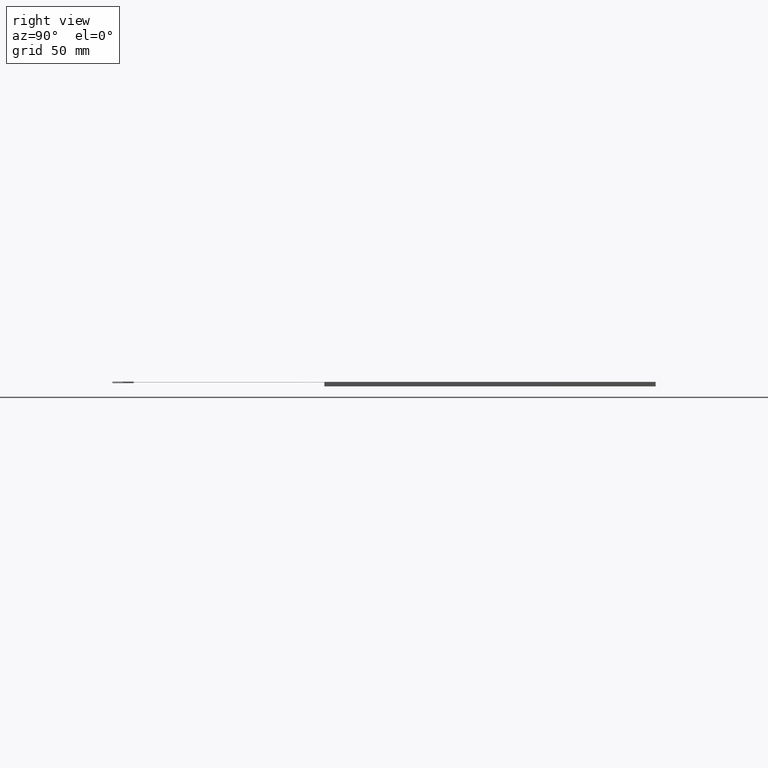
[diagram: clean part render]
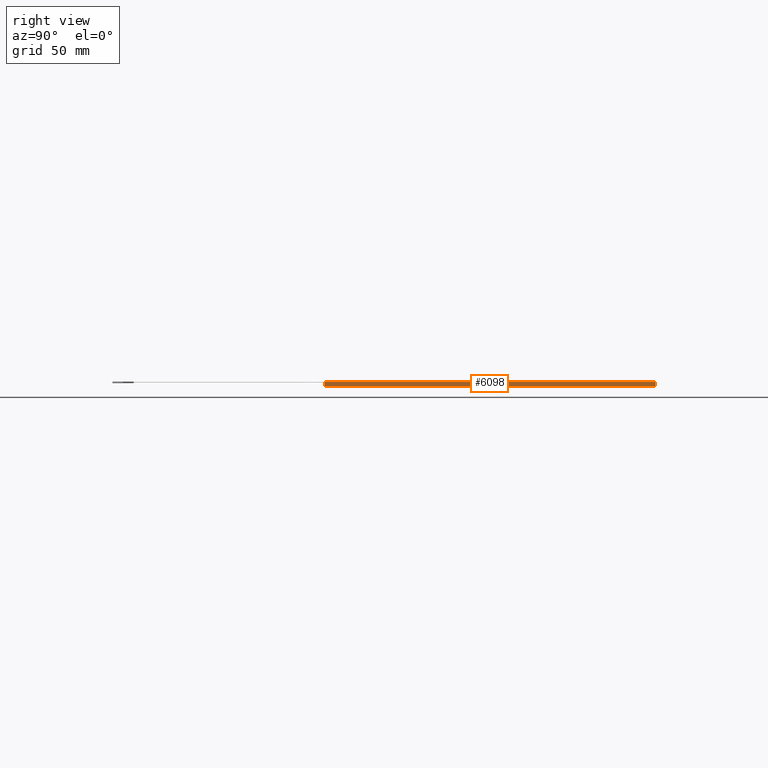
[diagram: same view with one face highlighted and labeled with its STEP entity id]
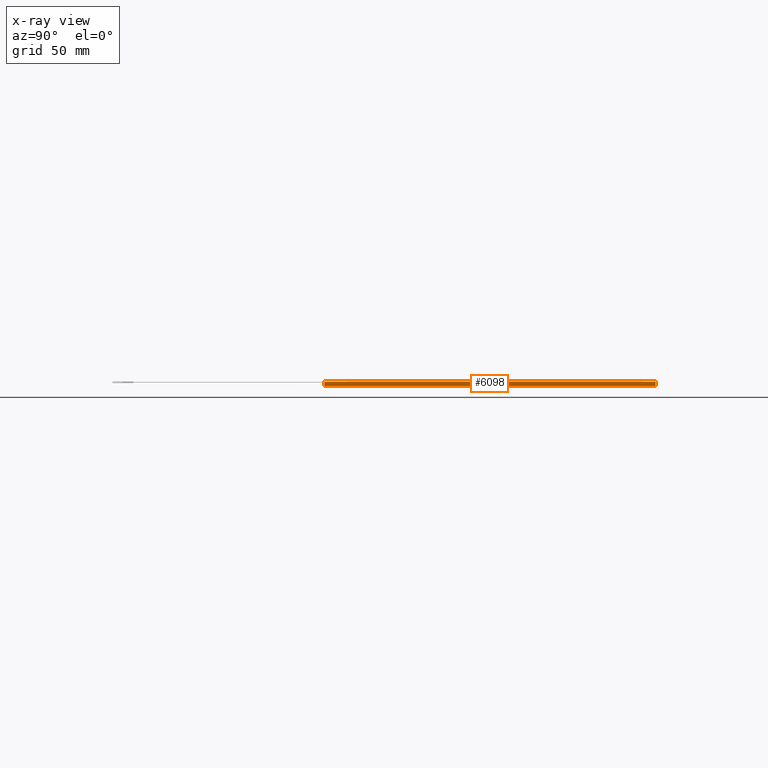
[diagram: x-ray of the same camera — body ghosted, the highlighted face saturated]
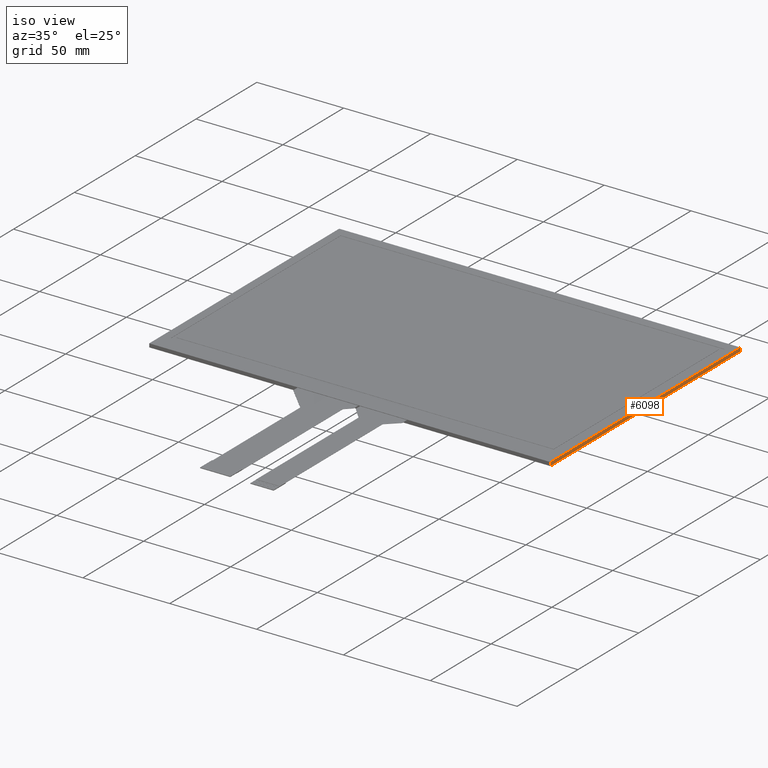
[diagram: same view with one face highlighted and labeled with its STEP entity id]
A machine part, right view. The second image highlights one B-rep face of the part: STEP entity #6098.
The next image is the same camera in x-ray: the body ghosted, the highlighted face saturated — about 0% of this face is hidden behind the body in this view.
A second angle (iso view) of the same face is appended — the face is thin or edge-on in the first view.
In plain terms, the highlighted planar face has unit normal (1, 0, 0).
Its self-contained STEP definition (entity closure, byte-faithful):
#328=PLANE('',#6436);
#622=FACE_OUTER_BOUND('',#920,.T.);
#920=EDGE_LOOP('',(#5780,#5781,#5782,#5783));
#1755=LINE('',#9634,#2595);
#1760=LINE('',#9644,#2600);
#1761=LINE('',#9647,#2601);
#1762=LINE('',#9648,#2602);
#2595=VECTOR('',#7897,10.);
#2600=VECTOR('',#7906,10.);
#2601=VECTOR('',#7909,10.);
#2602=VECTOR('',#7910,10.);
#3196=VERTEX_POINT('',#9627);
#3199=VERTEX_POINT('',#9632);
#3202=VERTEX_POINT('',#9642);
#3203=VERTEX_POINT('',#9646);
#4059=EDGE_CURVE('',#3199,#3196,#1755,.T.);
#4064=EDGE_CURVE('',#3199,#3202,#1760,.T.);
#4065=EDGE_CURVE('',#3203,#3202,#1761,.T.);
#4066=EDGE_CURVE('',#3196,#3203,#1762,.T.);
#5780=ORIENTED_EDGE('',*,*,#4059,.F.);
#5781=ORIENTED_EDGE('',*,*,#4064,.T.);
#5782=ORIENTED_EDGE('',*,*,#4065,.F.);
#5783=ORIENTED_EDGE('',*,*,#4066,.F.);
#6098=ADVANCED_FACE('',(#622),#328,.T.);
#6436=AXIS2_PLACEMENT_3D('',#9645,#7907,#7908);
#7897=DIRECTION('',(0.,1.,0.));
#7906=DIRECTION('',(0.,0.,-1.));
#7907=DIRECTION('center_axis',(1.,0.,0.));
#7908=DIRECTION('ref_axis',(0.,-1.,0.));
#7909=DIRECTION('',(0.,-1.,0.));
#7910=DIRECTION('',(0.,0.,-1.));
#9627=CARTESIAN_POINT('',(115.5,75.7000000000001,0.));
#9632=CARTESIAN_POINT('',(115.5,-80.4999999999999,0.));
#9634=CARTESIAN_POINT('',(115.5,-80.4999999999999,0.));
#9642=CARTESIAN_POINT('',(115.5,-80.4999999999999,-2.1));
#9644=CARTESIAN_POINT('',(115.5,-80.4999999999999,0.));
#9645=CARTESIAN_POINT('Origin',(115.5,75.7000000000001,0.));
#9646=CARTESIAN_POINT('',(115.5,75.7000000000001,-2.1));
#9647=CARTESIAN_POINT('',(115.5,-80.4999999999999,-2.1));
#9648=CARTESIAN_POINT('',(115.5,75.7000000000001,0.));